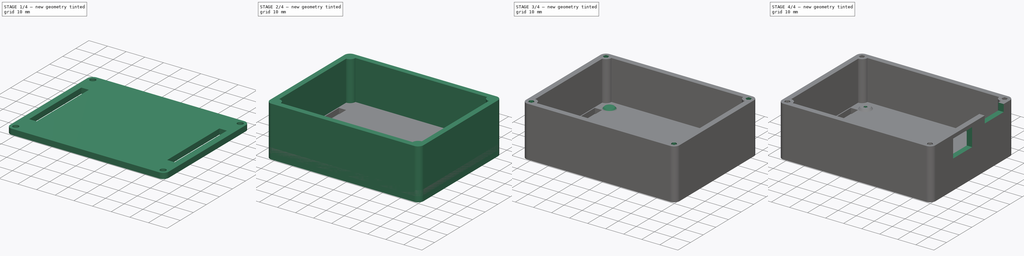
[diagram: build sequence overview — one tinted view per stage of 4, left to right]
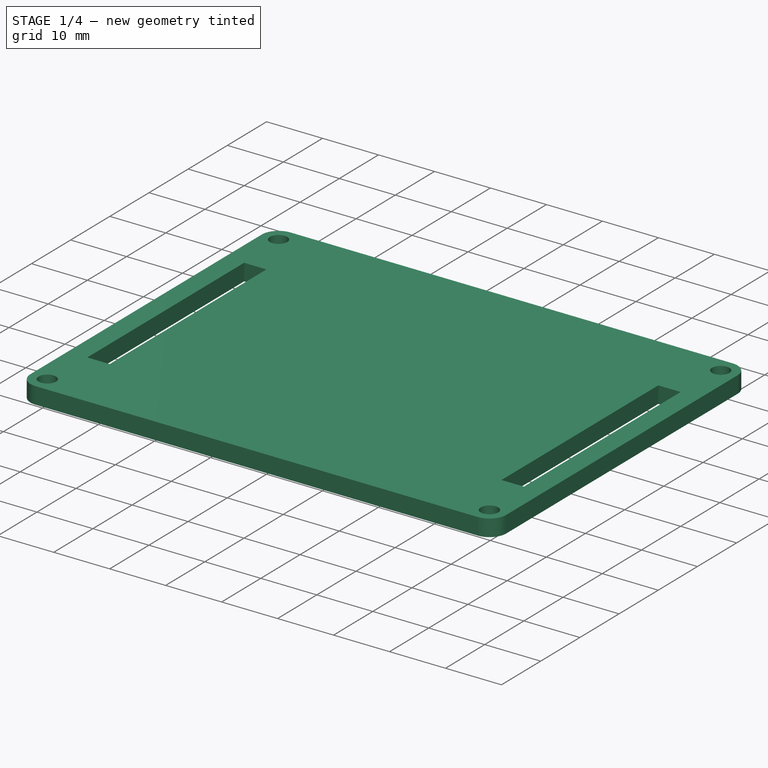
[diagram: stage 1 of 4 — iso view after this stage's code; geometry added in this stage tinted green]
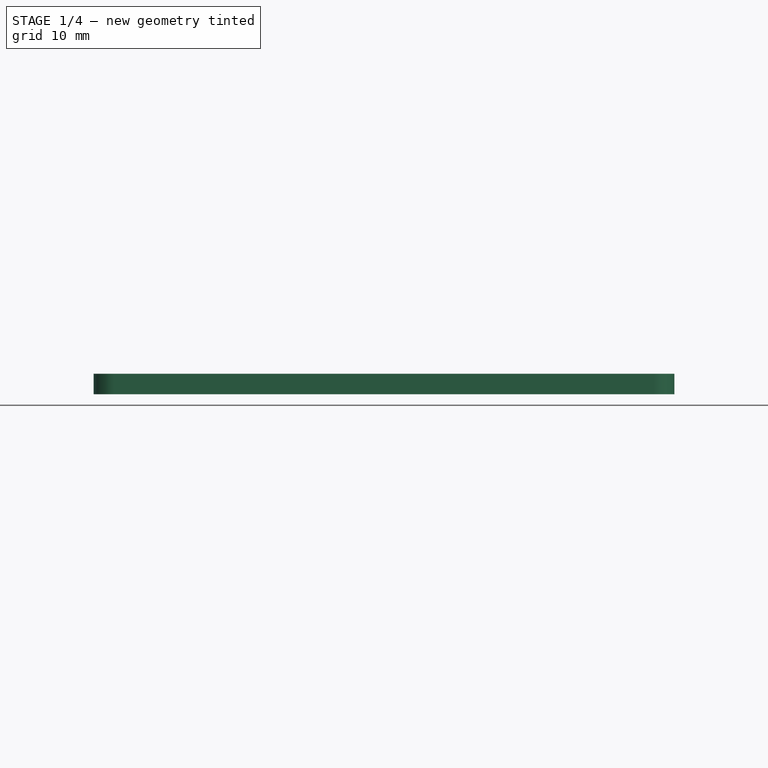
[diagram: stage 1 of 4 — front view after this stage's code; geometry added in this stage tinted green]
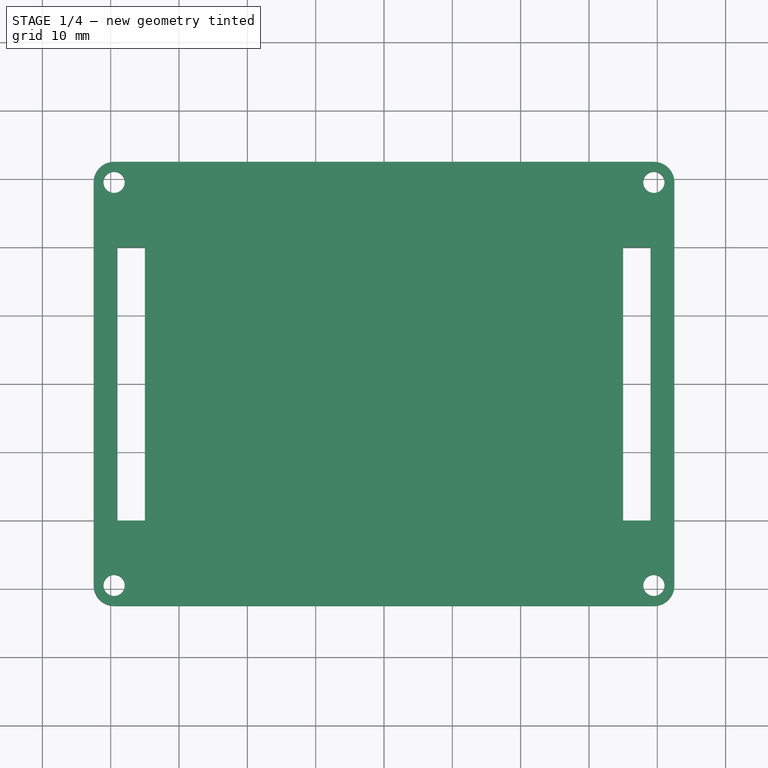
[diagram: stage 1 of 4 — top view after this stage's code; geometry added in this stage tinted green]
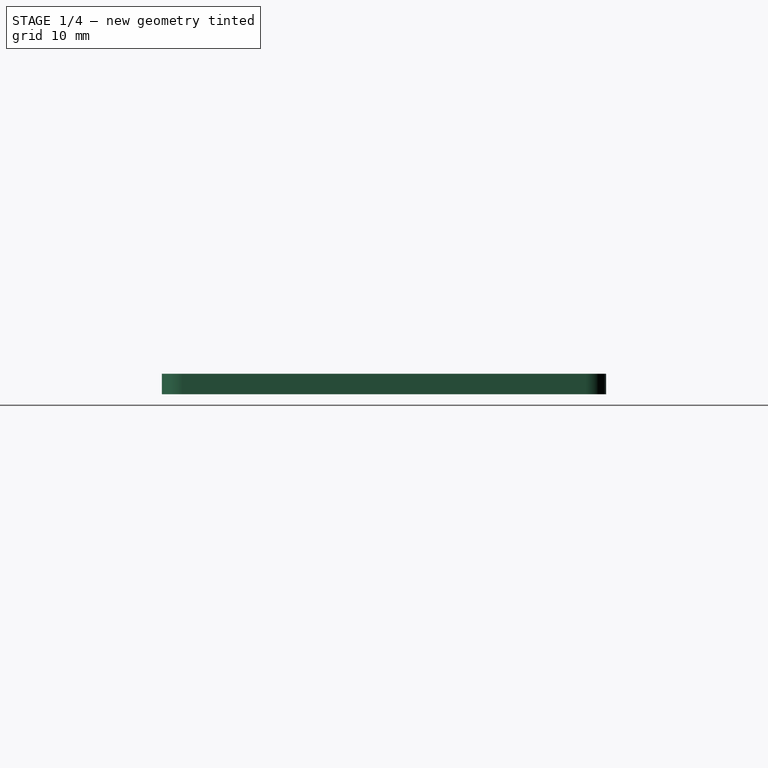
[diagram: stage 1 of 4 — right view after this stage's code; geometry added in this stage tinted green]
FCSTD DOCUMENT  (FreeCAD 0.19R24291 (Git))
Label: boiler_monitor_case
License: All rights reserved
LicenseURL: http://en.wikipedia.org/wiki/All_rights_reserved
objects: Sketcher::SketchObject×10, PartDesign::Pocket×5, PartDesign::Plane×3, PartDesign::Pad×3, PartDesign::CoordinateSystem×2, App::Link×2, PartDesign::LinearPattern×2, PartDesign::Body×2, App::Part×1, PartDesign::AdditiveLoft×1, PartDesign::MultiTransform×1, App::DocumentObjectGroup×1
note: 38 computed .brp shape members not serialized (recipe doc carries the construction recipe); baked Part::Feature solids carry a one-line shape summary decoded from their .brp

FEATURE [PartDesign::CoordinateSystem] LCS_0001  label="Lid_LCS"
  AttacherType = Attacher::AttachEngine3D
  MapMode = 2
  Support = -> [X_Axis002]
FEATURE [Sketcher::SketchObject] Sketch004  label="Lid_S_Panel"
  FullyConstrained = true
  MapMode = 5
  Support = -> [XY_Plane002]
  expr: Constraints[10] = Sketch.Constraints[10]
  expr: Constraints[11] = Sketch.Constraints[11]
  expr: .Constraints.wall = Sketch.Constraints[15]
  sketch-geometry (12):
    g0: LineSegment StartX=-39.5 StartY=32.5 StartZ=0 EndX=39.5 EndY=32.5 EndZ=0
    g1: LineSegment StartX=42.5 StartY=29.5 StartZ=0 EndX=42.5 EndY=-29.5 EndZ=0
    g2: LineSegment StartX=39.5 StartY=-32.5 StartZ=0 EndX=-39.5 EndY=-32.5 EndZ=0
    g3: LineSegment StartX=-42.5 StartY=-29.5 StartZ=0 EndX=-42.5 EndY=29.5 EndZ=0
    g4: ArcOfCircle CenterX=39.5 CenterY=29.5 CenterZ=0 NormalX=0 NormalY=0 NormalZ=1 AngleXU=0 Radius=3 StartAngle=-9e-16 EndAngle=1.5708
    g5: ArcOfCircle CenterX=-39.5 CenterY=29.5 CenterZ=0 NormalX=0 NormalY=0 NormalZ=1 AngleXU=0 Radius=3 StartAngle=1.5708 EndAngle=3.14159
    g6: ArcOfCircle CenterX=-39.5 CenterY=-29.5 CenterZ=0 NormalX=0 NormalY=0 NormalZ=1 AngleXU=0 Radius=3 StartAngle=3.14159 EndAngle=4.71239
    g7: ArcOfCircle CenterX=39.5 CenterY=-29.5 CenterZ=0 NormalX=0 NormalY=0 NormalZ=1 AngleXU=0 Radius=3 StartAngle=4.71239 EndAngle=6.28319
    g8: Circle CenterX=-39.5 CenterY=29.5 CenterZ=0 NormalX=0 NormalY=0 NormalZ=1 AngleXU=0 Radius=1.55
    g9: Circle CenterX=39.5 CenterY=29.5 CenterZ=0 NormalX=0 NormalY=0 NormalZ=1 AngleXU=0 Radius=1.55
    g10: Circle CenterX=39.5 CenterY=-29.5 CenterZ=0 NormalX=0 NormalY=0 NormalZ=1 AngleXU=0 Radius=1.55
    g11: Circle CenterX=-39.5 CenterY=-29.5 CenterZ=0 NormalX=0 NormalY=0 NormalZ=1 AngleXU=0 Radius=1.55
  constraints (25):
    c: Horizontal(g2)
    c: Vertical(g3)
    c: Tangent(g0,g4) = 1.5708
    c: Tangent(g1,g4) = 1.5708
    c: Tangent(g0,g5) = 1.5708
    c: Tangent(g3,g5) = 1.5708
    c: Tangent(g3,g6) = 1.5708
    c: Tangent(g2,g6) = 1.5708
    c: Tangent(g2,g7) = 1.5708
    c: Tangent(g1,g7) = 1.5708
    c: DistanceY(g2,g0) = 65
    c: DistanceX(g3,g1) = 85
    c: Equal(g5,g4)
    c: Symmetric(g5,g6,g-1)
    c: Symmetric(g5,g4,g-2)
    c: Radius(g7) = 3  'wall'
    c: Symmetric(g7,g4,g-1)
    c: Coincident(g8,g5)
    c: Coincident(g9,g4)
    c: Coincident(g10,g7)
    c: Coincident(g11,g6)
    c: Equal(g8,g9)
    c: Equal(g9,g10)
    c: Equal(g10,g11)
    c: Diameter(g11) = 3.1
FEATURE [PartDesign::Pad] Pad002  label="Lid_Panel"
  Direction = (1,1,1)
  Length = 3
  Length2 = 100
  Profile = -> Sketch004
  Type = 0
FEATURE [PartDesign::Body] Case
  Group = -> [LCS_0,Sketch,DatumPlane,DatumPlane001,Pad,Sketch001,Pocket,Sketch002,Pad001,Sketch003,Pocket001,DatumPlane002,Sketch005,Sketch006,AdditiveLoft,MultiTransform,LinearPattern,LinearPattern001,Sketch007,Pocket002,Sketch008,Pocket003]
  Origin = -> Origin001
  Tip = -> Pocket003
FEATURE [Sketcher::SketchObject] Sketch009  label="Lid_S_Vent"
  FullyConstrained = true
  MapMode = 5
  Support = -> [XY_Plane002]
  sketch-geometry (8):
    g0: LineSegment StartX=-39 StartY=20 StartZ=0 EndX=-35 EndY=20 EndZ=0
    g1: LineSegment StartX=-35 StartY=20 StartZ=0 EndX=-35 EndY=-20 EndZ=0
    g2: LineSegment StartX=-35 StartY=-20 StartZ=0 EndX=-39 EndY=-20 EndZ=0
    g3: LineSegment StartX=-39 StartY=-20 StartZ=0 EndX=-39 EndY=20 EndZ=0
    g4: LineSegment StartX=35 StartY=20 StartZ=0 EndX=39 EndY=20 EndZ=0
    g5: LineSegment StartX=39 StartY=20 StartZ=0 EndX=39 EndY=-20 EndZ=0
    g6: LineSegment StartX=39 StartY=-20 StartZ=0 EndX=35 EndY=-20 EndZ=0
    g7: LineSegment StartX=35 StartY=-20 StartZ=0 EndX=35 EndY=20 EndZ=0
  constraints (21):
    c: Coincident(g0,g1)
    c: Coincident(g1,g2)
    c: Coincident(g2,g3)
    c: Coincident(g3,g0)
    c: Horizontal(g0)
    c: Horizontal(g2)
    c: Vertical(g3)
    c: Coincident(g4,g5)
    c: Coincident(g5,g6)
    c: Coincident(g6,g7)
    c: Coincident(g7,g4)
    c: Horizontal(g4)
    c: Horizontal(g6)
    c: Vertical(g5)
    c: Symmetric(g0,g4,g-2)
    c: Symmetric(g1,g6,g-2)
    c: Equal(g0,g4)
    c: Symmetric(g0,g1,g-1)
    c: DistanceY(g3,g3) = 40  'vent_length'
    c: DistanceX(g0,g0) = 4  'vent_width'
    c: DistanceX(g2,g5) = 78
FEATURE [PartDesign::Pocket] Pocket004  label="Lid_Vent"
  BaseFeature = -> Pad002
  Length = 5
  Length2 = 100
  Profile = -> Sketch009
  Reversed = true
  Type = 1
FEATURE [PartDesign::Body] Lid
  Group = -> [LCS_0001,Sketch004,Pad002,Sketch009,Pocket004]
  Origin = -> Origin002
  Tip = -> Pocket004
FEATURE [App::DocumentObjectGroup] Parts
  Group = -> [Case,Lid]
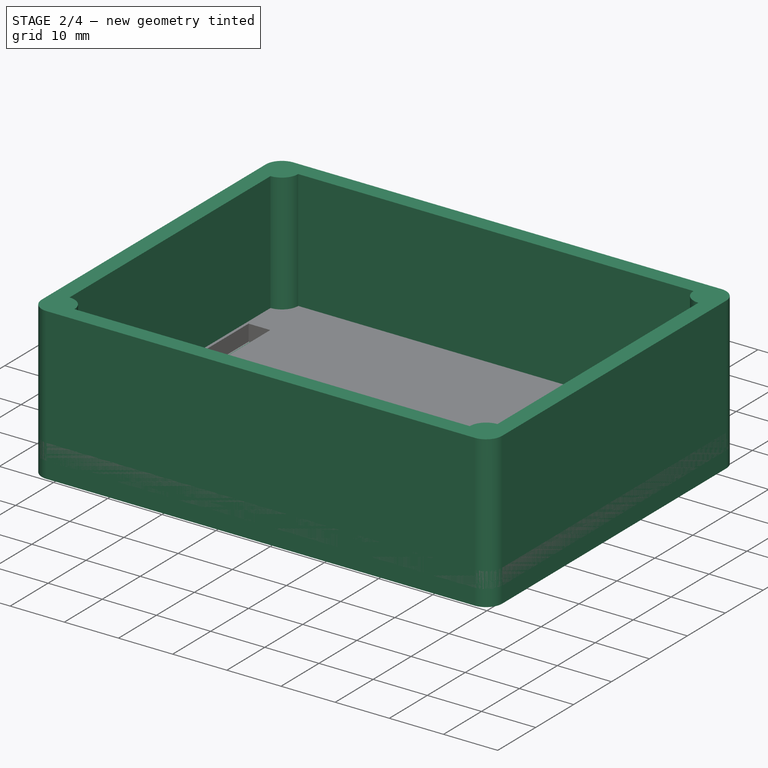
[diagram: stage 2 of 4 — iso view after this stage's code; geometry added in this stage tinted green]
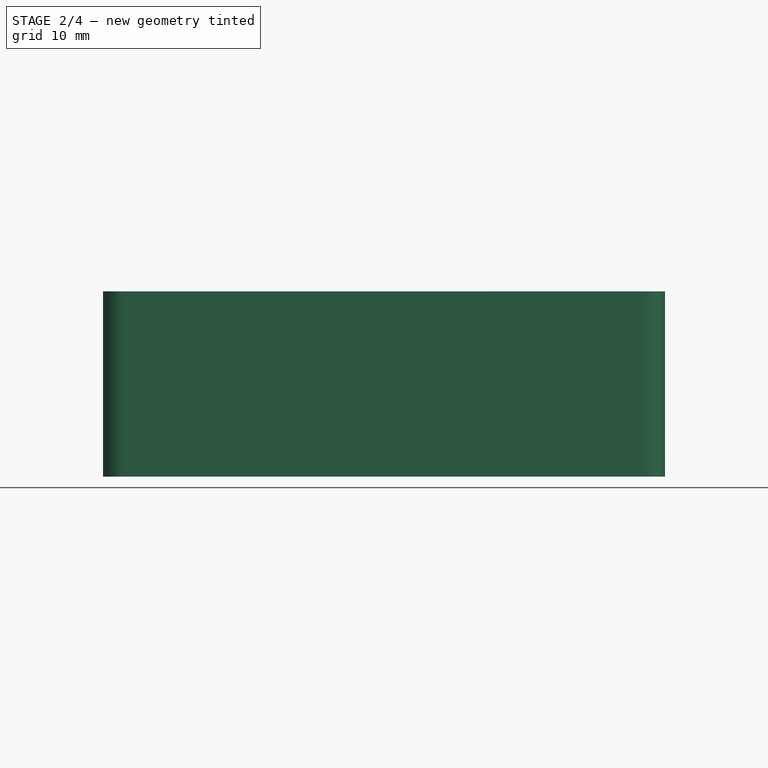
[diagram: stage 2 of 4 — front view after this stage's code; geometry added in this stage tinted green]
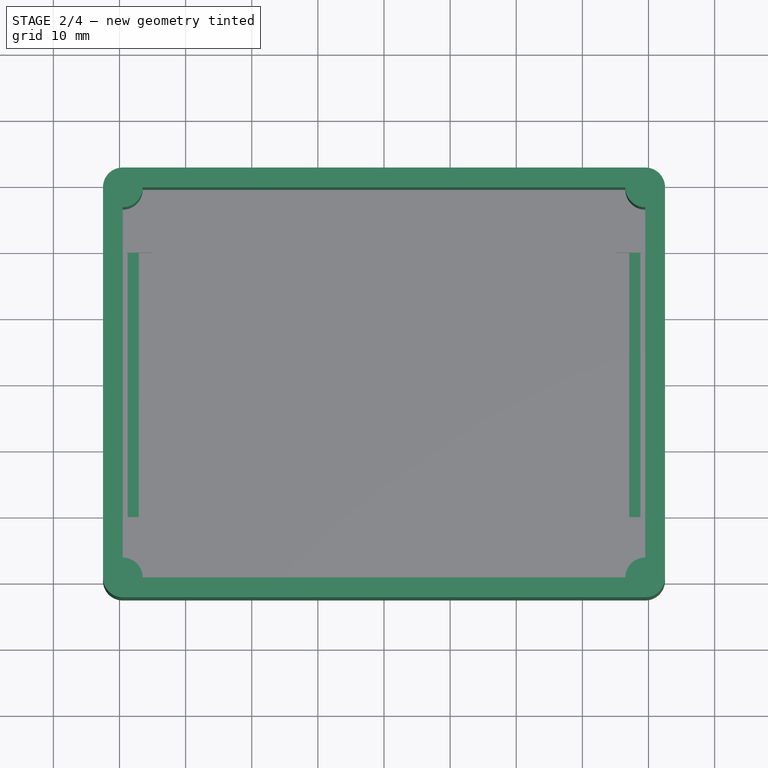
[diagram: stage 2 of 4 — top view after this stage's code; geometry added in this stage tinted green]
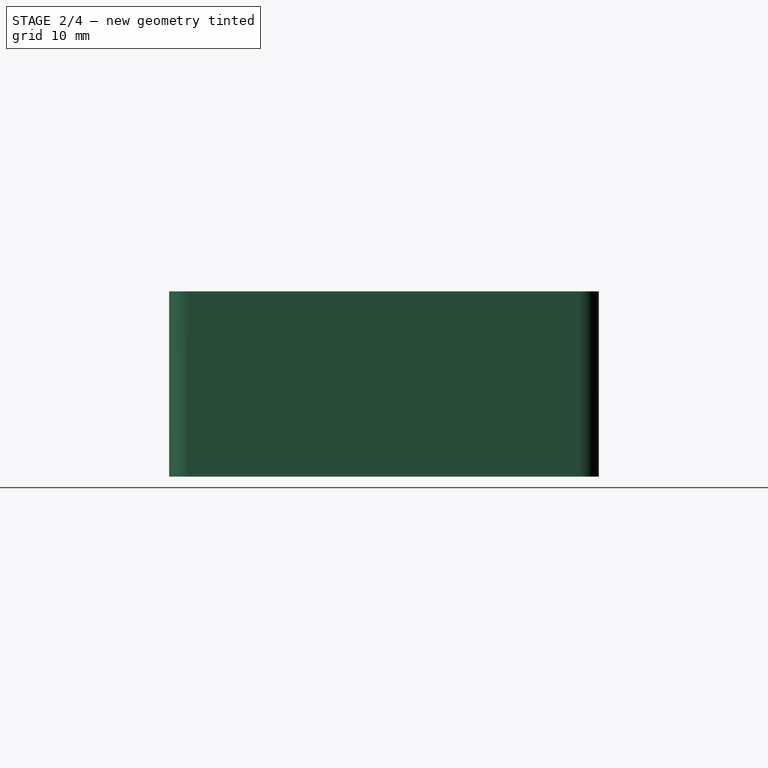
[diagram: stage 2 of 4 — right view after this stage's code; geometry added in this stage tinted green]
FEATURE [PartDesign::Plane] DatumPlane  label="Case_Plane_Bottom"
  AttachmentOffset = pos=(0,0,-3) rot=(0,0,1;0rad)
  Length = 99.8661
  MapMode = 5
  Placement = pos=(0,0,-3) rot=(0,0,1;0rad)
  ResizeMode = 0
  Support = -> [XY_Plane001]
  Width = 79.8661
FEATURE [Sketcher::SketchObject] Sketch  label="Case_S_Outer"
  FullyConstrained = true
  MapMode = 5
  Placement = pos=(0,0,-3) rot=(0,0,1;0rad)
  Support = -> [DatumPlane]
  sketch-geometry (8):
    g0: LineSegment StartX=-39.5 StartY=32.5 StartZ=0 EndX=39.5 EndY=32.5 EndZ=0
    g1: LineSegment StartX=42.5 StartY=29.5 StartZ=0 EndX=42.5 EndY=-29.5 EndZ=0
    g2: LineSegment StartX=39.5 StartY=-32.5 StartZ=0 EndX=-39.5 EndY=-32.5 EndZ=0
    g3: LineSegment StartX=-42.5 StartY=-29.5 StartZ=0 EndX=-42.5 EndY=29.5 EndZ=0
    g4: ArcOfCircle CenterX=39.5 CenterY=29.5 CenterZ=0 NormalX=0 NormalY=0 NormalZ=1 AngleXU=0 Radius=3 StartAngle=-1.8527e-12 EndAngle=1.5708
    g5: ArcOfCircle CenterX=-39.5 CenterY=29.5 CenterZ=0 NormalX=0 NormalY=0 NormalZ=1 AngleXU=0 Radius=3 StartAngle=1.5708 EndAngle=3.14159
    g6: ArcOfCircle CenterX=-39.5 CenterY=-29.5 CenterZ=0 NormalX=0 NormalY=0 NormalZ=1 AngleXU=0 Radius=3 StartAngle=3.14159 EndAngle=4.71239
    g7: ArcOfCircle CenterX=39.5 CenterY=-29.5 CenterZ=0 NormalX=0 NormalY=0 NormalZ=1 AngleXU=0 Radius=3 StartAngle=4.71239 EndAngle=6.28319
  constraints (17):
    c: Horizontal(g2)
    c: Vertical(g3)
    c: Tangent(g0,g4) = 1.5708
    c: Tangent(g1,g4) = 1.5708
    c: Tangent(g0,g5) = 1.5708
    c: Tangent(g3,g5) = 1.5708
    c: Tangent(g3,g6) = 1.5708
    c: Tangent(g2,g6) = 1.5708
    c: Tangent(g2,g7) = 1.5708
    c: Tangent(g1,g7) = 1.5708
    c: DistanceY(g2,g0) = 65
    c: DistanceX(g3,g1) = 85
    c: Equal(g5,g4)
    c: Symmetric(g5,g6,g-1)
    c: Symmetric(g5,g4,g-2)
    c: Radius(g7) = 3  'wall'
    c: Symmetric(g7,g4,g-1)
FEATURE [PartDesign::Plane] DatumPlane001  label="Case_Plane_Top"
  AttachmentOffset = pos=(0,0,25) rot=(0,0,1;0rad)
  Length = 99.8661
  MapMode = 5
  Placement = pos=(0,0,25) rot=(0,0,1;0rad)
  ResizeMode = 0
  Support = -> [XY_Plane001]
  Width = 79.8661
FEATURE [PartDesign::CoordinateSystem] LCS_0  label="Case_LCS_Top"
  AttacherType = Attacher::AttachEngine3D
  MapMode = 2
  Placement = pos=(0,0,25) rot=(0,0,1;0rad)
  Support = -> [DatumPlane001]
FEATURE [PartDesign::Pad] Pad  label="Case_Outer"
  Direction = (1,1,1)
  Length = 10
  Length2 = 100
  Placement = pos=(0,0,-3) rot=(0,0,1;0rad)
  Profile = -> Sketch
  Type = 3
  UpToFace = -> DatumPlane001 [Plane]
FEATURE [Sketcher::SketchObject] Sketch001  label="Case_S_Inner"
  FullyConstrained = true
  MapMode = 5
  Placement = pos=(0,0,25) rot=(0,0,1;0rad)
  Support = -> [DatumPlane001]
  expr: Constraints[23] = Sketch.Constraints.wall
  expr: Constraints[19] = Sketch.Constraints[11]
  expr: Constraints[18] = Sketch.Constraints[10]
  sketch-geometry (12):
    g0: LineSegment StartX=39.5 StartY=-29.5 StartZ=0 EndX=-39.5 EndY=-29.5 EndZ=0
    g1: LineSegment StartX=-39.5 StartY=-29.5 StartZ=0 EndX=-39.5 EndY=29.5 EndZ=0
    g2: LineSegment StartX=-39.5 StartY=29.5 StartZ=0 EndX=39.5 EndY=29.5 EndZ=0
    g3: LineSegment StartX=39.5 StartY=29.5 StartZ=0 EndX=39.5 EndY=-29.5 EndZ=0
    g4: LineSegment StartX=-39.5 StartY=32.5 StartZ=0 EndX=39.5 EndY=32.5 EndZ=0
    g5: LineSegment StartX=42.5 StartY=29.5 StartZ=0 EndX=42.5 EndY=-29.5 EndZ=0
    g6: LineSegment StartX=39.5 StartY=-32.5 StartZ=0 EndX=-39.5 EndY=-32.5 EndZ=0
    g7: LineSegment StartX=-42.5 StartY=-29.5 StartZ=0 EndX=-42.5 EndY=29.5 EndZ=0
    g8: ArcOfCircle CenterX=39.5 CenterY=29.5 CenterZ=0 NormalX=0 NormalY=0 NormalZ=1 AngleXU=0 Radius=3 StartAngle=0 EndAngle=1.5708
    g9: ArcOfCircle CenterX=-39.5 CenterY=29.5 CenterZ=0 NormalX=0 NormalY=0 NormalZ=1 AngleXU=0 Radius=3 StartAngle=1.5708 EndAngle=3.14159
    g10: ArcOfCircle CenterX=-39.5 CenterY=-29.5 CenterZ=0 NormalX=0 NormalY=0 NormalZ=1 AngleXU=0 Radius=3 StartAngle=3.14159 EndAngle=4.71239
    g11: ArcOfCircle CenterX=39.5 CenterY=-29.5 CenterZ=0 NormalX=0 NormalY=0 NormalZ=1 AngleXU=0 Radius=3 StartAngle=4.71239 EndAngle=6.28319
  constraints (26):
    c: Coincident(g0,g1)
    c: Coincident(g1,g2)
    c: Coincident(g2,g3)
    c: Coincident(g3,g0)
    c: Horizontal(g2)
    c: Vertical(g3)
    c: Symmetric(g0,g0,g-2)
    c: Symmetric(g0,g1,g-1)
    c: Horizontal(g6)
    c: Vertical(g7)
    c: Tangent(g4,g8) = 1.5708
    c: Tangent(g5,g8) = 1.5708
    c: Tangent(g4,g9) = 1.5708
    c: Tangent(g7,g9) = 1.5708
    c: Tangent(g7,g10) = 1.5708
    c: Tangent(g6,g10) = 1.5708
    c: Tangent(g6,g11) = 1.5708
    c: Tangent(g5,g11) = 1.5708
    c: DistanceY(g6,g4) = 65
    c: DistanceX(g7,g5) = 85
    c: Equal(g9,g8)
    c: Symmetric(g9,g10,g-1)
    c: Symmetric(g9,g8,g-2)
    c: Radius(g11) = 3
    c: Symmetric(g11,g8,g-1)
    c: Coincident(g1,g9)
FEATURE [PartDesign::Pocket] Pocket  label="Case_Inner"
  BaseFeature = -> Pad
  Length = 0
  Length2 = 100
  Placement = pos=(0,0,-3) rot=(0,0,1;0rad)
  Profile = -> Sketch001
  Type = 3
  UpToFace = -> XY_Plane001
FEATURE [Sketcher::SketchObject] Sketch002  label="Case_S_MountSupports"
  FullyConstrained = true
  MapMode = 5
  Placement = pos=(0,0,25) rot=(0,0,1;0rad)
  Support = -> [DatumPlane001]
  expr: Constraints[23] = Sketch001.Constraints[23]
  expr: Constraints[19] = Sketch001.Constraints[19]
  expr: Constraints[18] = Sketch001.Constraints[18]
  sketch-geometry (16):
    g0: LineSegment StartX=39.5 StartY=-29.5 StartZ=0 EndX=-39.5 EndY=-29.5 EndZ=0
    g1: LineSegment StartX=-39.5 StartY=-29.5 StartZ=0 EndX=-39.5 EndY=29.5 EndZ=0
    g2: LineSegment StartX=-39.5 StartY=29.5 StartZ=0 EndX=39.5 EndY=29.5 EndZ=0
    g3: LineSegment StartX=39.5 StartY=29.5 StartZ=0 EndX=39.5 EndY=-29.5 EndZ=0
    g4: LineSegment StartX=-39.5 StartY=32.5 StartZ=0 EndX=39.5 EndY=32.5 EndZ=0
    g5: LineSegment StartX=42.5 StartY=29.5 StartZ=0 EndX=42.5 EndY=-29.5 EndZ=0
    g6: LineSegment StartX=39.5 StartY=-32.5 StartZ=0 EndX=-39.5 EndY=-32.5 EndZ=0
    g7: LineSegment StartX=-42.5 StartY=-29.5 StartZ=0 EndX=-42.5 EndY=29.5 EndZ=0
    g8: ArcOfCircle CenterX=39.5 CenterY=29.5 CenterZ=0 NormalX=0 NormalY=0 NormalZ=1 AngleXU=0 Radius=3 StartAngle=0 EndAngle=1.5708
    g9: ArcOfCircle CenterX=-39.5 CenterY=29.5 CenterZ=0 NormalX=0 NormalY=0 NormalZ=1 AngleXU=0 Radius=3 StartAngle=1.5708 EndAngle=3.14159
    g10: ArcOfCircle CenterX=-39.5 CenterY=-29.5 CenterZ=0 NormalX=0 NormalY=0 NormalZ=1 AngleXU=0 Radius=3 StartAngle=3.14159 EndAngle=4.71239
    g11: ArcOfCircle CenterX=39.5 CenterY=-29.5 CenterZ=0 NormalX=0 NormalY=0 NormalZ=1 AngleXU=0 Radius=3 StartAngle=4.71239 EndAngle=6.28319
    g12: Circle CenterX=-39.5 CenterY=29.5 CenterZ=0 NormalX=0 NormalY=0 NormalZ=1 AngleXU=0 Radius=3
    g13: Circle CenterX=39.5 CenterY=29.5 CenterZ=0 NormalX=0 NormalY=0 NormalZ=1 AngleXU=0 Radius=3
    g14: Circle CenterX=39.5 CenterY=-29.5 CenterZ=0 NormalX=0 NormalY=0 NormalZ=1 AngleXU=0 Radius=3
    g15: Circle CenterX=-39.5 CenterY=-29.5 CenterZ=0 NormalX=0 NormalY=0 NormalZ=1 AngleXU=0 Radius=3
  constraints (34):
    c: Coincident(g0,g1)
    c: Coincident(g1,g2)
    c: Coincident(g2,g3)
    c: Coincident(g3,g0)
    c: Horizontal(g2)
    c: Vertical(g3)
    c: Symmetric(g0,g0,g-2)
    c: Symmetric(g0,g1,g-1)
    c: Horizontal(g6)
    c: Vertical(g7)
    c: Tangent(g4,g8) = 1.5708
    c: Tangent(g5,g8) = 1.5708
    c: Tangent(g4,g9) = 1.5708
    c: Tangent(g7,g9) = 1.5708
    c: Tangent(g7,g10) = 1.5708
    c: Tangent(g6,g10) = 1.5708
    c: Tangent(g6,g11) = 1.5708
    c: Tangent(g5,g11) = 1.5708
    c: DistanceY(g6,g4) = 65
    c: DistanceX(g7,g5) = 85
    c: Equal(g9,g8)
    c: Symmetric(g9,g10,g-1)
    c: Symmetric(g9,g8,g-2)
    c: Radius(g11) = 3
    c: Symmetric(g11,g8,g-1)
    c: Coincident(g1,g9)
    c: Coincident(g12,g1)
    c: PointOnObject(g4,g12)
    c: Coincident(g13,g2)
    c: PointOnObject(g4,g13)
    c: Coincident(g14,g0)
    c: PointOnObject(g6,g14)
    c: Coincident(g15,g0)
    c: PointOnObject(g6,g15)
FEATURE [PartDesign::Pad] Pad001  label="Case_MountSupports"
  BaseFeature = -> Pocket
  Direction = (1,1,1)
  Length = 10
  Length2 = 100
  Placement = pos=(0,0,-3) rot=(0,0,1;0rad)
  Profile = -> Sketch002
  Type = 3
  UpToFace = -> XY_Plane001
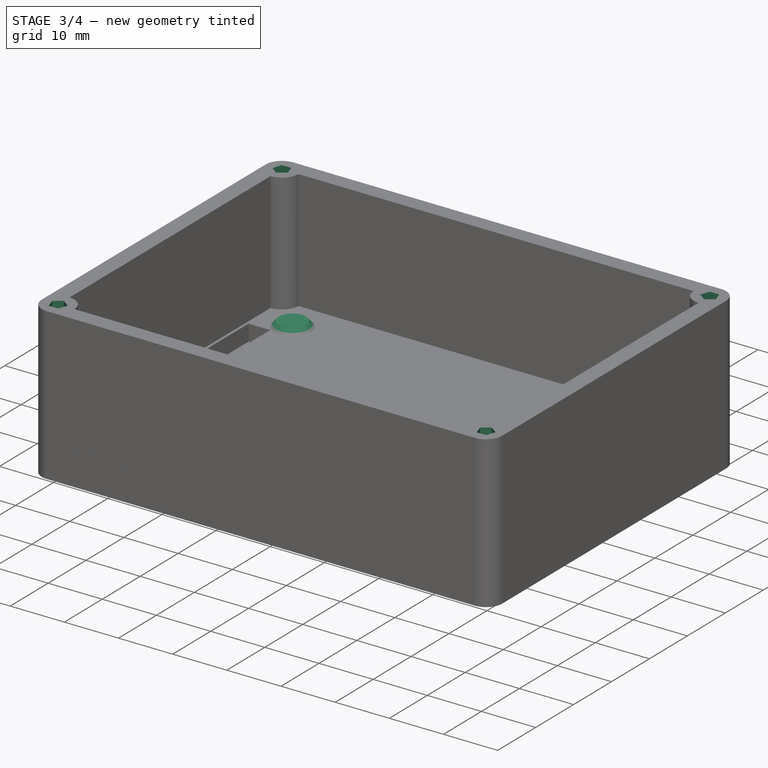
[diagram: stage 3 of 4 — iso view after this stage's code; geometry added in this stage tinted green]
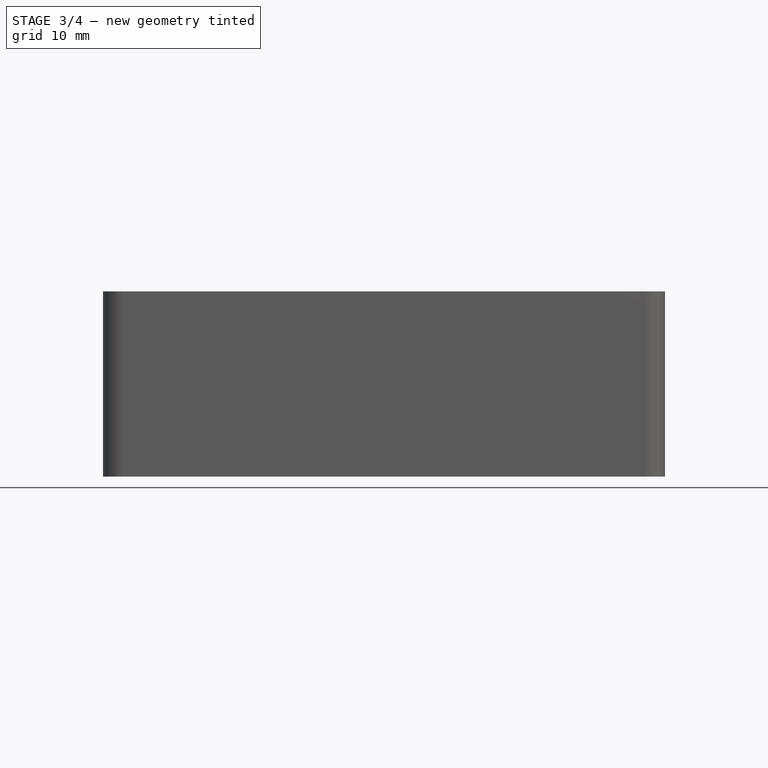
[diagram: stage 3 of 4 — front view after this stage's code; geometry added in this stage tinted green]
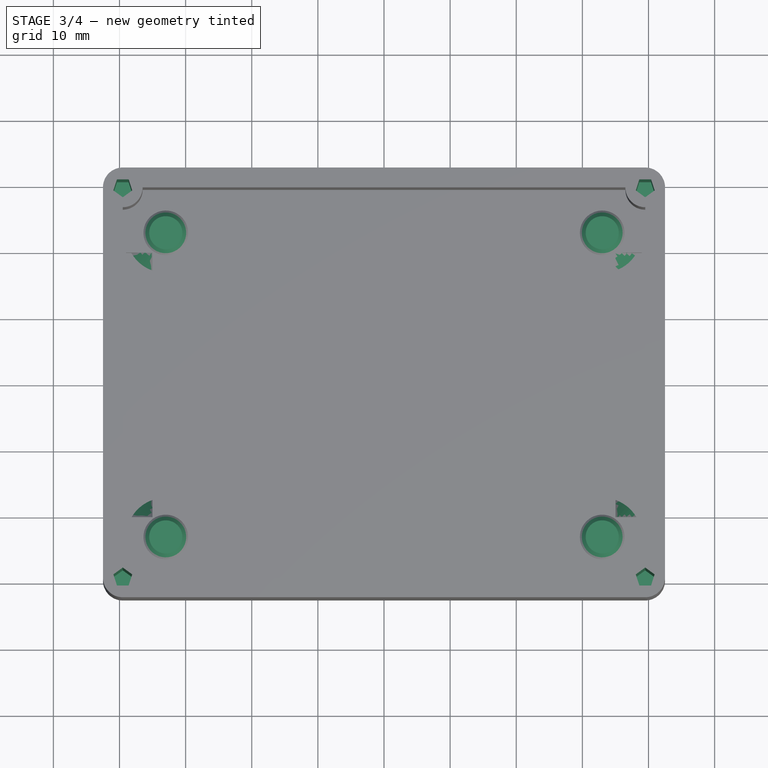
[diagram: stage 3 of 4 — top view after this stage's code; geometry added in this stage tinted green]
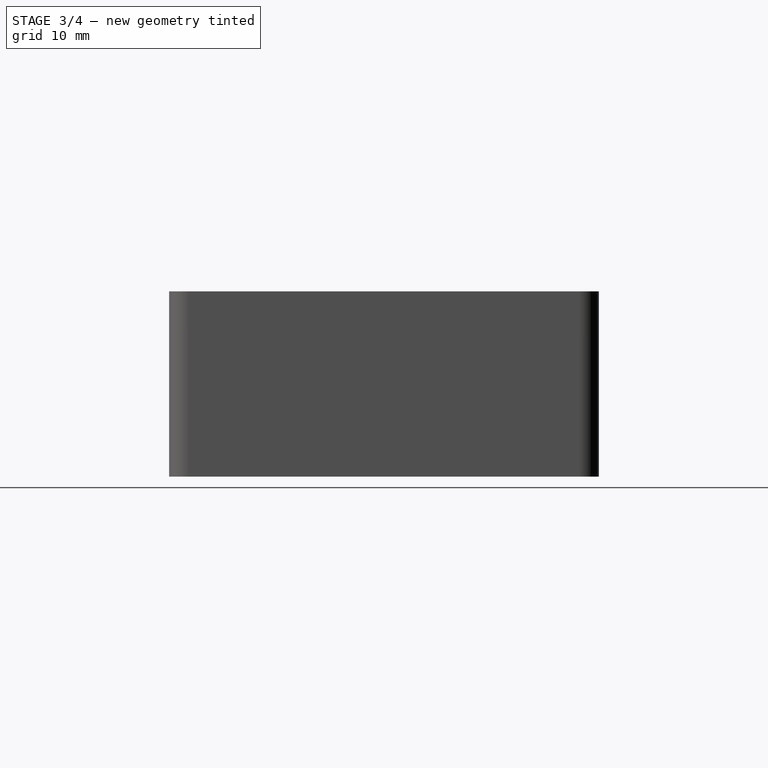
[diagram: stage 3 of 4 — right view after this stage's code; geometry added in this stage tinted green]
FEATURE [Sketcher::SketchObject] Sketch003  label="Case_S_Mount"
  FullyConstrained = true
  MapMode = 5
  Placement = pos=(0,0,25) rot=(0,0,1;0rad)
  Support = -> [DatumPlane001]
  expr: Constraints[23] = Sketch001.Constraints[23]
  expr: Constraints[19] = Sketch001.Constraints[19]
  expr: Constraints[18] = Sketch001.Constraints[18]
  sketch-geometry (36):
    g0: LineSegment StartX=39.5 StartY=-29.5 StartZ=0 EndX=-39.5 EndY=-29.5 EndZ=0
    g1: LineSegment StartX=-39.5 StartY=-29.5 StartZ=0 EndX=-39.5 EndY=29.5 EndZ=0
    g2: LineSegment StartX=-39.5 StartY=29.5 StartZ=0 EndX=39.5 EndY=29.5 EndZ=0
    g3: LineSegment StartX=39.5 StartY=29.5 StartZ=0 EndX=39.5 EndY=-29.5 EndZ=0
    g4: LineSegment StartX=-39.5 StartY=32.5 StartZ=0 EndX=39.5 EndY=32.5 EndZ=0
    g5: LineSegment StartX=42.5 StartY=29.5 StartZ=0 EndX=42.5 EndY=-29.5 EndZ=0
    g6: LineSegment StartX=39.5 StartY=-32.5 StartZ=0 EndX=-39.5 EndY=-32.5 EndZ=0
    g7: LineSegment StartX=-42.5 StartY=-29.5 StartZ=0 EndX=-42.5 EndY=29.5 EndZ=0
    g8: ArcOfCircle CenterX=39.5 CenterY=29.5 CenterZ=0 NormalX=0 NormalY=0 NormalZ=1 AngleXU=0 Radius=3 StartAngle=-9e-16 EndAngle=1.5708
    g9: ArcOfCircle CenterX=-39.5 CenterY=29.5 CenterZ=0 NormalX=0 NormalY=0 NormalZ=1 AngleXU=0 Radius=3 StartAngle=1.5708 EndAngle=3.14159
    g10: ArcOfCircle CenterX=-39.5 CenterY=-29.5 CenterZ=0 NormalX=0 NormalY=0 NormalZ=1 AngleXU=0 Radius=3 StartAngle=3.14159 EndAngle=4.71239
    g11: ArcOfCircle CenterX=39.5 CenterY=-29.5 CenterZ=0 NormalX=0 NormalY=0 NormalZ=1 AngleXU=0 Radius=3 StartAngle=4.71239 EndAngle=6.28319
    g12: LineSegment StartX=-38.0734 StartY=29.0365 StartZ=0 EndX=-38.6183 EndY=30.7135 EndZ=0
    g13: LineSegment StartX=-38.6183 StartY=30.7135 StartZ=0 EndX=-40.3817 EndY=30.7135 EndZ=0
    g14: LineSegment StartX=-40.3817 StartY=30.7135 StartZ=0 EndX=-40.9266 EndY=29.0365 EndZ=0
    g15: LineSegment StartX=-40.9266 StartY=29.0365 StartZ=0 EndX=-39.5 EndY=28 EndZ=0
    g16: LineSegment StartX=-39.5 StartY=28 StartZ=0 EndX=-38.0734 EndY=29.0365 EndZ=0
    g17: Circle CenterX=-39.5 CenterY=29.5 CenterZ=0 NormalX=0 NormalY=0 NormalZ=1 AngleXU=0 Radius=1.5
    g18: LineSegment StartX=38.0734 StartY=29.0365 StartZ=0 EndX=39.5 EndY=28 EndZ=0
    g19: LineSegment StartX=39.5 StartY=28 StartZ=0 EndX=40.9266 EndY=29.0365 EndZ=0
    g20: LineSegment StartX=40.9266 StartY=29.0365 StartZ=0 EndX=40.3817 EndY=30.7135 EndZ=0
    g21: LineSegment StartX=40.3817 StartY=30.7135 StartZ=0 EndX=38.6183 EndY=30.7135 EndZ=0
    g22: LineSegment StartX=38.6183 StartY=30.7135 StartZ=0 EndX=38.0734 EndY=29.0365 EndZ=0
    g23: Circle CenterX=39.5 CenterY=29.5 CenterZ=0 NormalX=0 NormalY=0 NormalZ=1 AngleXU=0 Radius=1.5
    g24: LineSegment StartX=40.9266 StartY=-29.0365 StartZ=0 EndX=39.5 EndY=-28 EndZ=0
    g25: LineSegment StartX=39.5 StartY=-28 StartZ=0 EndX=38.0734 EndY=-29.0365 EndZ=0
    g26: LineSegment StartX=38.0734 StartY=-29.0365 StartZ=0 EndX=38.6183 EndY=-30.7135 EndZ=0
    g27: LineSegment StartX=38.6183 StartY=-30.7135 StartZ=0 EndX=40.3817 EndY=-30.7135 EndZ=0
    g28: LineSegment StartX=40.3817 StartY=-30.7135 StartZ=0 EndX=40.9266 EndY=-29.0365 EndZ=0
    g29: Circle CenterX=39.5 CenterY=-29.5 CenterZ=0 NormalX=0 NormalY=0 NormalZ=1 AngleXU=0 Radius=1.5
    g30: LineSegment StartX=-39.5 StartY=-28 StartZ=0 EndX=-40.9266 EndY=-29.0365 EndZ=0
    g31: LineSegment StartX=-40.9266 StartY=-29.0365 StartZ=0 EndX=-40.3817 EndY=-30.7135 EndZ=0
    g32: LineSegment StartX=-40.3817 StartY=-30.7135 StartZ=0 EndX=-38.6183 EndY=-30.7135 EndZ=0
    g33: LineSegment StartX=-38.6183 StartY=-30.7135 StartZ=0 EndX=-38.0734 EndY=-29.0365 EndZ=0
    g34: LineSegment StartX=-38.0734 StartY=-29.0365 StartZ=0 EndX=-39.5 EndY=-28 EndZ=0
    g35: Circle CenterX=-39.5 CenterY=-29.5 CenterZ=0 NormalX=0 NormalY=0 NormalZ=1 AngleXU=0 Radius=1.5
  constraints (82):
    c: Coincident(g0,g1)
    c: Coincident(g1,g2)
    c: Coincident(g2,g3)
    c: Coincident(g3,g0)
    c: Horizontal(g2)
    c: Vertical(g3)
    c: Symmetric(g0,g0,g-2)
    c: Symmetric(g0,g1,g-1)
    c: Horizontal(g6)
    c: Vertical(g7)
    c: Tangent(g4,g8) = 1.5708
    c: Tangent(g5,g8) = 1.5708
    c: Tangent(g4,g9) = 1.5708
    c: Tangent(g7,g9) = 1.5708
    c: Tangent(g7,g10) = 1.5708
    c: Tangent(g6,g10) = 1.5708
    c: Tangent(g6,g11) = 1.5708
    c: Tangent(g5,g11) = 1.5708
    c: DistanceY(g6,g4) = 65
    c: DistanceX(g7,g5) = 85
    c: Equal(g9,g8)
    c: Symmetric(g9,g10,g-1)
    c: Symmetric(g9,g8,g-2)
    c: Radius(g11) = 3
    c: Symmetric(g11,g8,g-1)
    c: Coincident(g1,g9)
    c: Coincident(g12,g13)
    c: Coincident(g13,g14)
    c: Coincident(g14,g15)
    c: Coincident(g15,g16)
    c: Coincident(g16,g12)
    c: Equal(g12, g13-g16) x4
    c: PointOnObject(g12,g17)
    c: PointOnObject(g13,g17)
    c: PointOnObject(g14,g17)
    c: PointOnObject(g15,g17)
    c: PointOnObject(g16,g17)
    c: Coincident(g17,g1)
    c: Coincident(g18,g19)
    c: Coincident(g19,g20)
    c: Coincident(g20,g21)
    c: Coincident(g21,g22)
    c: Coincident(g22,g18)
    c: Equal(g18, g19-g22) x4
    c: PointOnObject(g18,g23)
    c: PointOnObject(g19,g23)
    c: PointOnObject(g20,g23)
    c: PointOnObject(g21,g23)
    c: PointOnObject(g22,g23)
    c: Coincident(g23,g2)
    c: Coincident(g24,g25)
    c: Coincident(g25,g26)
    c: Coincident(g26,g27)
    c: Coincident(g27,g28)
    c: Coincident(g28,g24)
    c: Equal(g24, g25-g28) x4
    c: PointOnObject(g24,g29)
    c: PointOnObject(g25,g29)
    c: PointOnObject(g26,g29)
    c: PointOnObject(g27,g29)
    c: PointOnObject(g28,g29)
    c: Coincident(g29,g0)
    c: Coincident(g30,g31)
    c: Coincident(g31,g32)
    c: Coincident(g32,g33)
    c: Coincident(g33,g34)
    c: Coincident(g34,g30)
    c: Equal(g30, g31-g34) x4
    c: PointOnObject(g30,g35)
    c: PointOnObject(g31,g35)
    c: PointOnObject(g32,g35)
    c: PointOnObject(g33,g35)
    c: PointOnObject(g34,g35)
    c: Coincident(g35,g0)
    c: Equal(g17,g23)
    c: Equal(g23,g29)
    c: Equal(g29,g35)
    c: Diameter(g35) = 3
    c: PointOnObject(g15,g1)
    c: PointOnObject(g30,g1)
    c: PointOnObject(g24,g3)
    c: PointOnObject(g18,g3)
FEATURE [PartDesign::Pocket] Pocket001  label="Case_Mount"
  BaseFeature = -> Pad001
  Length = 0
  Length2 = 100
  Placement = pos=(0,0,-3) rot=(0,0,1;0rad)
  Profile = -> Sketch003
  Type = 3
  UpToFace = -> XY_Plane001
FEATURE [App::Link] Case001  label="Case_Ass"
  LinkedObject = -> Case
FEATURE [App::Link] Lid001  label="Lid_Ass"
  AssemblyType = Asm4EE
  AttachedBy = #LCS_0001
  AttachedTo = Case001#LCS_0
  LinkPlacement = pos=(0,0,25) rot=(0,0,1;0rad)
  LinkedObject = -> Lid
  Placement = pos=(0,0,25) rot=(0,0,1;0rad)
  expr: Placement = Case001.Placement * LCS_0.Placement * AttachmentOffset * LCS_0001.Placement ^ -1
FEATURE [App::Part] Model
  Configuration = 0
  Group = -> [Case001,Lid001]
  Origin = -> Origin
  Type = Assembly4 Model
FEATURE [PartDesign::Plane] DatumPlane002  label="Case_Plane_PcbStandoffs"
  AttachmentOffset = pos=(0,0,4) rot=(0,0,1;0rad)
  Length = 99.8661
  MapMode = 5
  Placement = pos=(0,0,4) rot=(0,0,1;0rad)
  ResizeMode = 0
  Support = -> [XY_Plane001]
  Width = 79.8661
FEATURE [Sketcher::SketchObject] Sketch005  label="Case_S_PcbStandoffUpper"
  AttachmentOffset = pos=(-33,-23,0) rot=(0,0,1;0rad)
  FullyConstrained = true
  MapMode = 5
  Placement = pos=(-33,-23,4) rot=(0,0,1;0rad)
  Support = -> [DatumPlane002]
  sketch-geometry (1):
    g0: Circle CenterX=0 CenterY=0 CenterZ=0 NormalX=0 NormalY=0 NormalZ=1 AngleXU=0 Radius=2.5
  constraints (2):
    c: Coincident(g0,g-1)
    c: Diameter(g0) = 5
FEATURE [Sketcher::SketchObject] Sketch006  label="Case_S_PcbStandoffLower"
  AttachmentOffset = pos=(-33,-23,0) rot=(0,0,1;0rad)
  FullyConstrained = true
  MapMode = 5
  Placement = pos=(-33,-23,0) rot=(0,0,1;0rad)
  Support = -> [XY_Plane001]
  sketch-geometry (1):
    g0: Circle CenterX=0 CenterY=0 CenterZ=0 NormalX=0 NormalY=0 NormalZ=1 AngleXU=0 Radius=6
  constraints (2):
    c: Coincident(g0,g-1)
    c: Diameter(g0) = 12
FEATURE [PartDesign::AdditiveLoft] AdditiveLoft  label="Case_PcbStandoff"
  BaseFeature = -> Pocket001
  Closed = false
  Placement = pos=(0,0,-3) rot=(0,0,1;0rad)
  Profile = -> Sketch005
  Ruled = false
  Sections = -> [Sketch006]
FEATURE [PartDesign::LinearPattern] LinearPattern  label="Case_Trans_PcbStandoffsX"
  Direction = -> Sketch005 [H_Axis]
  Length = 66
  Occurrences = 2
  Placement = pos=(0,0,-3) rot=(0,0,1;0rad)
FEATURE [PartDesign::LinearPattern] LinearPattern001  label="Case_Trans_PcbStandoffsY"
  Direction = -> Sketch005 [V_Axis]
  Length = 46
  Occurrences = 2
  Placement = pos=(0,0,-3) rot=(0,0,1;0rad)
FEATURE [PartDesign::MultiTransform] MultiTransform  label="Case_PcbStandoffs"
  BaseFeature = -> AdditiveLoft
  Originals = -> [AdditiveLoft]
  Placement = pos=(0,0,-3) rot=(0,0,1;0rad)
  Transformations = -> [LinearPattern,LinearPattern001]
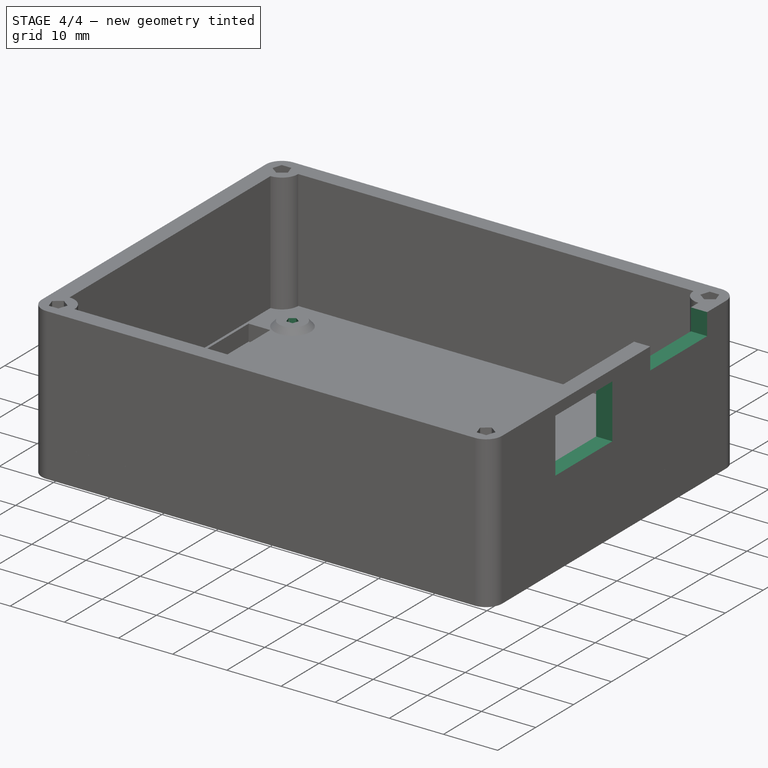
[diagram: stage 4 of 4 — iso view after this stage's code; geometry added in this stage tinted green]
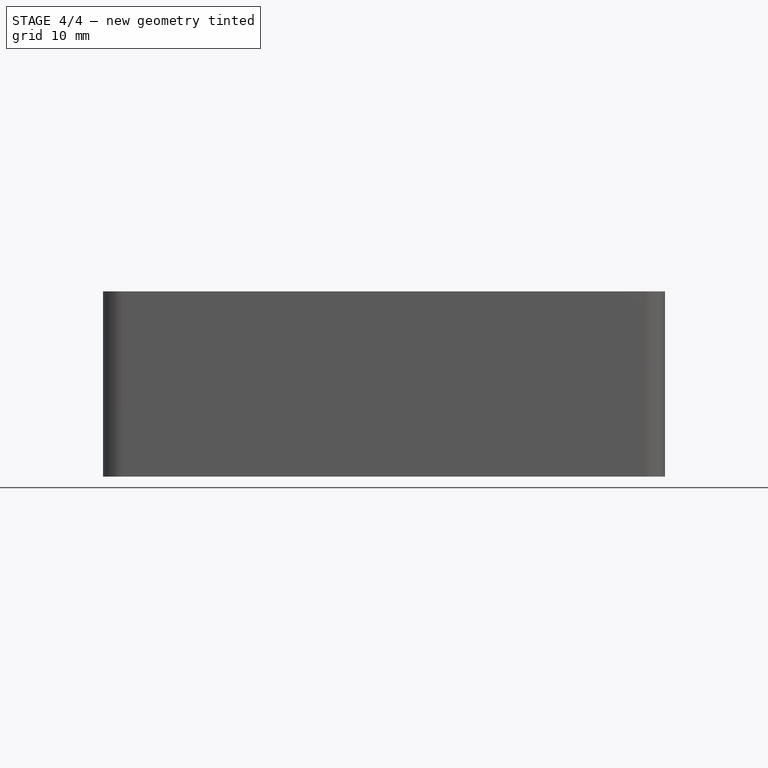
[diagram: stage 4 of 4 — front view after this stage's code; geometry added in this stage tinted green]
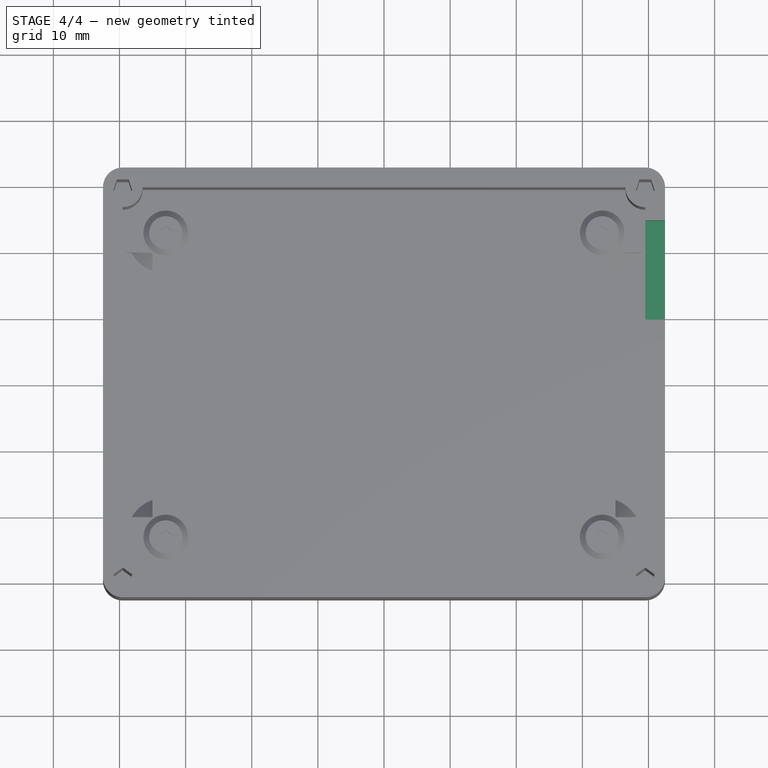
[diagram: stage 4 of 4 — top view after this stage's code; geometry added in this stage tinted green]
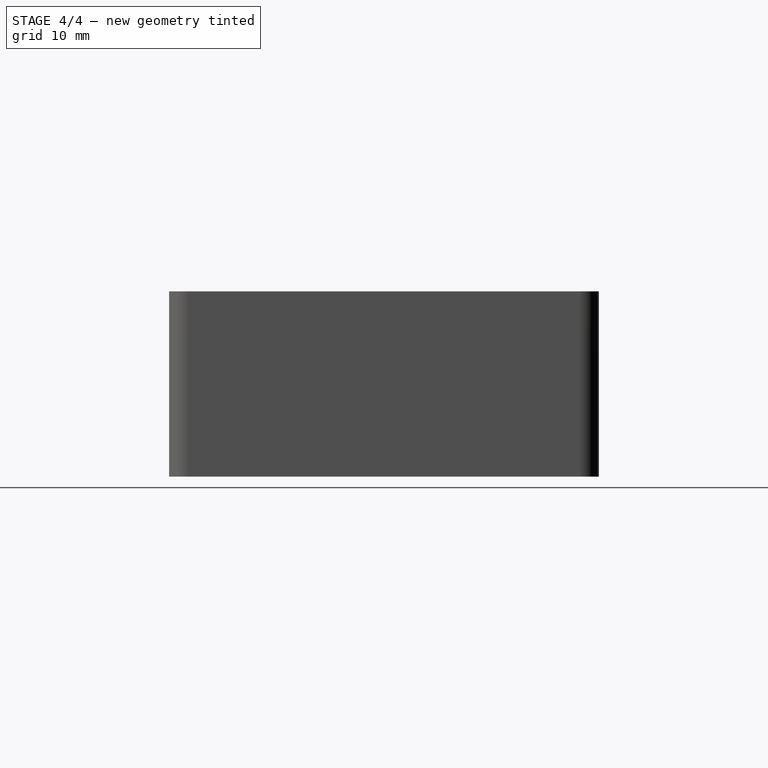
[diagram: stage 4 of 4 — right view after this stage's code; geometry added in this stage tinted green]
FEATURE [Sketcher::SketchObject] Sketch007  label="Case_S_PcbMountingHoles"
  ExternalGeometry = -> [MultiTransform]
  FullyConstrained = true
  MapMode = 5
  Placement = pos=(0,0,4) rot=(0,0,1;0rad)
  Support = -> [DatumPlane002]
  sketch-geometry (24):
    g0: LineSegment StartX=-33.5878 StartY=22.191 StartZ=0 EndX=-32.4122 EndY=22.191 EndZ=0
    g1: LineSegment StartX=-32.4122 StartY=22.191 StartZ=0 EndX=-32.0489 EndY=23.309 EndZ=0
    g2: LineSegment StartX=-32.0489 StartY=23.309 StartZ=0 EndX=-33 EndY=24 EndZ=0
    g3: LineSegment StartX=-33 StartY=24 StartZ=0 EndX=-33.9511 EndY=23.309 EndZ=0
    g4: LineSegment StartX=-33.9511 StartY=23.309 StartZ=0 EndX=-33.5878 EndY=22.191 EndZ=0
    g5: Circle CenterX=-33 CenterY=23 CenterZ=0 NormalX=0 NormalY=0 NormalZ=1 AngleXU=0 Radius=1
    g6: LineSegment StartX=33 StartY=24 StartZ=0 EndX=32.0489 EndY=23.309 EndZ=0
    g7: LineSegment StartX=32.0489 StartY=23.309 StartZ=0 EndX=32.4122 EndY=22.191 EndZ=0
    g8: LineSegment StartX=32.4122 StartY=22.191 StartZ=0 EndX=33.5878 EndY=22.191 EndZ=0
    g9: LineSegment StartX=33.5878 StartY=22.191 StartZ=0 EndX=33.9511 EndY=23.309 EndZ=0
    g10: LineSegment StartX=33.9511 StartY=23.309 StartZ=0 EndX=33 EndY=24 EndZ=0
    g11: Circle CenterX=33 CenterY=23 CenterZ=0 NormalX=0 NormalY=0 NormalZ=1 AngleXU=0 Radius=1
    g12: LineSegment StartX=-33.9511 StartY=-22.691 StartZ=0 EndX=-33.5878 EndY=-23.809 EndZ=0
    g13: LineSegment StartX=-33.5878 StartY=-23.809 StartZ=0 EndX=-32.4122 EndY=-23.809 EndZ=0
    g14: LineSegment StartX=-32.4122 StartY=-23.809 StartZ=0 EndX=-32.0489 EndY=-22.691 EndZ=0
    g15: LineSegment StartX=-32.0489 StartY=-22.691 StartZ=0 EndX=-33 EndY=-22 EndZ=0
    g16: LineSegment StartX=-33 StartY=-22 StartZ=0 EndX=-33.9511 EndY=-22.691 EndZ=0
    g17: Circle CenterX=-33 CenterY=-23 CenterZ=0 NormalX=0 NormalY=0 NormalZ=1 AngleXU=0 Radius=1
    g18: LineSegment StartX=33.9511 StartY=-22.691 StartZ=0 EndX=33 EndY=-22 EndZ=0
    g19: LineSegment StartX=33 StartY=-22 StartZ=0 EndX=32.0489 EndY=-22.691 EndZ=0
    g20: LineSegment StartX=32.0489 StartY=-22.691 StartZ=0 EndX=32.4122 EndY=-23.809 EndZ=0
    g21: LineSegment StartX=32.4122 StartY=-23.809 StartZ=0 EndX=33.5878 EndY=-23.809 EndZ=0
    g22: LineSegment StartX=33.5878 StartY=-23.809 StartZ=0 EndX=33.9511 EndY=-22.691 EndZ=0
    g23: Circle CenterX=33 CenterY=-23 CenterZ=0 NormalX=0 NormalY=0 NormalZ=1 AngleXU=0 Radius=1
  constraints (56):
    c: Coincident(g0,g1)
    c: Coincident(g1,g2)
    c: Coincident(g2,g3)
    c: Coincident(g3,g4)
    c: Coincident(g4,g0)
    c: Equal(g0, g1-g4) x4
    c: PointOnObject(g0,g5)
    c: PointOnObject(g1,g5)
    c: PointOnObject(g2,g5)
    c: PointOnObject(g3,g5)
    c: PointOnObject(g4,g5)
    c: Coincident(g5,g-3)
    c: Coincident(g6,g7)
    c: Coincident(g7,g8)
    c: Coincident(g8,g9)
    c: Coincident(g9,g10)
    c: Coincident(g10,g6)
    c: Equal(g6, g7-g10) x4
    c: PointOnObject(g6,g11)
    c: PointOnObject(g7,g11)
    c: PointOnObject(g8,g11)
    c: PointOnObject(g9,g11)
    c: PointOnObject(g10,g11)
    c: Coincident(g11,g-4)
    c: Coincident(g12,g13)
    c: Coincident(g13,g14)
    c: Coincident(g14,g15)
    c: Coincident(g15,g16)
    c: Coincident(g16,g12)
    c: Equal(g12, g13-g16) x4
    c: PointOnObject(g12,g17)
    c: PointOnObject(g13,g17)
    c: PointOnObject(g14,g17)
    c: PointOnObject(g15,g17)
    c: PointOnObject(g16,g17)
    c: Coincident(g17,g-6)
    c: Coincident(g18,g19)
    c: Coincident(g19,g20)
    c: Coincident(g20,g21)
    c: Coincident(g21,g22)
    c: Coincident(g22,g18)
    c: Equal(g18, g19-g22) x4
    c: PointOnObject(g18,g23)
    c: PointOnObject(g19,g23)
    c: PointOnObject(g20,g23)
    c: PointOnObject(g21,g23)
    c: PointOnObject(g22,g23)
    c: Coincident(g23,g-5)
    c: Diameter(g17) = 2
    c: Equal(g17,g5)
    c: Equal(g5,g11)
    c: Equal(g11,g23)
    c: Horizontal(g0)
    c: Horizontal(g8)
    c: Horizontal(g21)
    c: Horizontal(g13)
FEATURE [PartDesign::Pocket] Pocket002  label="Case_PcbMountingHoles"
  BaseFeature = -> MultiTransform
  Length = 6
  Length2 = 100
  Placement = pos=(0,0,-3) rot=(0,0,1;0rad)
  Profile = -> Sketch007
  Type = 0
FEATURE [Sketcher::SketchObject] Sketch008  label="Case_S_CableCutouts"
  ExternalGeometry = -> [Pocket002,DatumPlane002]
  FullyConstrained = true
  MapMode = 5
  Placement = pos=(42.5,-2.8866e-12,-3) rot=(0.57735,0.57735,0.57735;2.0944rad)
  Support = -> [Pocket002]
  expr: Constraints[30] = <<Case_Trans_PcbStandoffsY>>.Length / 2 - 15mm
  sketch-geometry (11):
    g0: LineSegment StartX=-15.5 StartY=26 StartZ=0 EndX=-0.5 EndY=26 EndZ=0
    g1: LineSegment StartX=-0.5 StartY=26 StartZ=0 EndX=-0.5 EndY=16 EndZ=0
    g2: LineSegment StartX=-0.5 StartY=16 StartZ=0 EndX=-15.5 EndY=16 EndZ=0
    g3: LineSegment StartX=-15.5 StartY=16 StartZ=0 EndX=-15.5 EndY=26 EndZ=0
    g4: LineSegment StartX=9.5 StartY=28 StartZ=0 EndX=24.5 EndY=28 EndZ=0
    g5: LineSegment StartX=24.5 StartY=28 StartZ=0 EndX=24.5 EndY=24 EndZ=0
    g6: LineSegment StartX=24.5 StartY=24 StartZ=0 EndX=9.5 EndY=24 EndZ=0
    g7: LineSegment StartX=9.5 StartY=24 StartZ=0 EndX=9.5 EndY=28 EndZ=0
    g8: LineSegment StartX=-15.5 StartY=16 StartZ=0 EndX=-15.5 EndY=7 EndZ=0
    g9: GeomPoint X=-8 Y=26 Z=0
    g10: LineSegment StartX=-8 StartY=26 StartZ=0 EndX=0 EndY=26 EndZ=0
  constraints (31):
    c: Coincident(g0,g1)
    c: Coincident(g1,g2)
    c: Coincident(g2,g3)
    c: Coincident(g3,g0)
    c: Horizontal(g0)
    c: Horizontal(g2)
    c: Vertical(g1)
    c: Vertical(g3)
    c: DistanceX(g0,g0) = 15
    c: DistanceY(g3,g3) = 10
    c: Coincident(g4,g5)
    c: Coincident(g5,g6)
    c: Coincident(g6,g7)
    c: Coincident(g7,g4)
    c: Horizontal(g4)
    c: Horizontal(g6)
    c: Vertical(g5)
    c: Vertical(g7)
    c: PointOnObject(g4,g-3)
    c: DistanceY(g7,g7) = 4
    c: DistanceX(g6,g6) = 15
    c: DistanceX(g4,g-3) = 5
    c: Coincident(g8,g2)
    c: PointOnObject(g8,g-4)
    c: Vertical(g8)
    c: DistanceY(g8,g8) = 9
    c: Symmetric(g0,g0,g9)
    c: Coincident(g10,g9)
    c: PointOnObject(g10,g-2)
    c: Horizontal(g10)
    c: DistanceX(g10,g10) = 8
FEATURE [PartDesign::Pocket] Pocket003  label="Case_CableCutouts"
  BaseFeature = -> Pocket002
  Length = 5
  Length2 = 100
  Placement = pos=(0,0,-3) rot=(0,0,1;0rad)
  Profile = -> Sketch008
  Type = 2
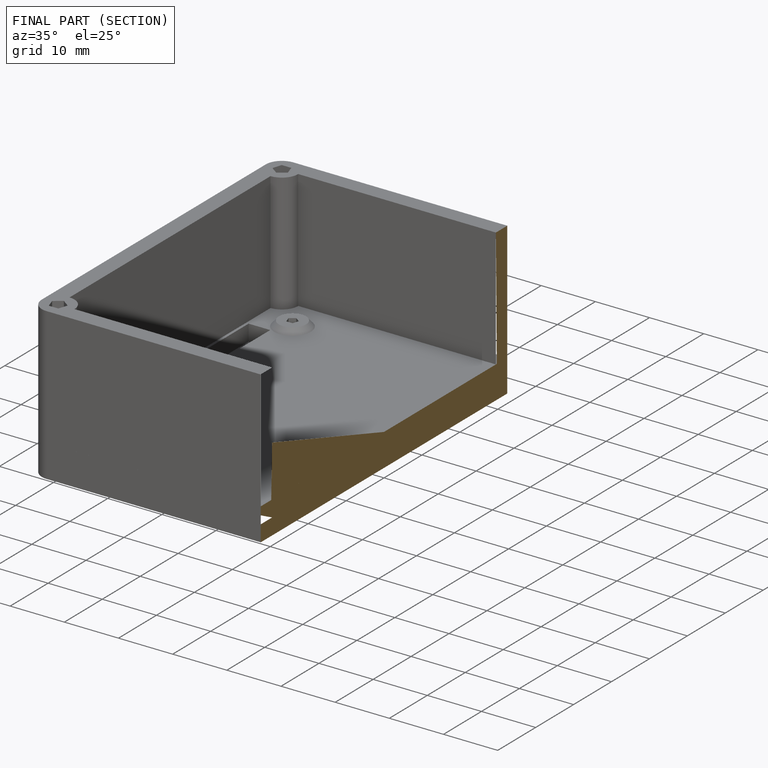
[diagram: finished part — half-section view (interior)]
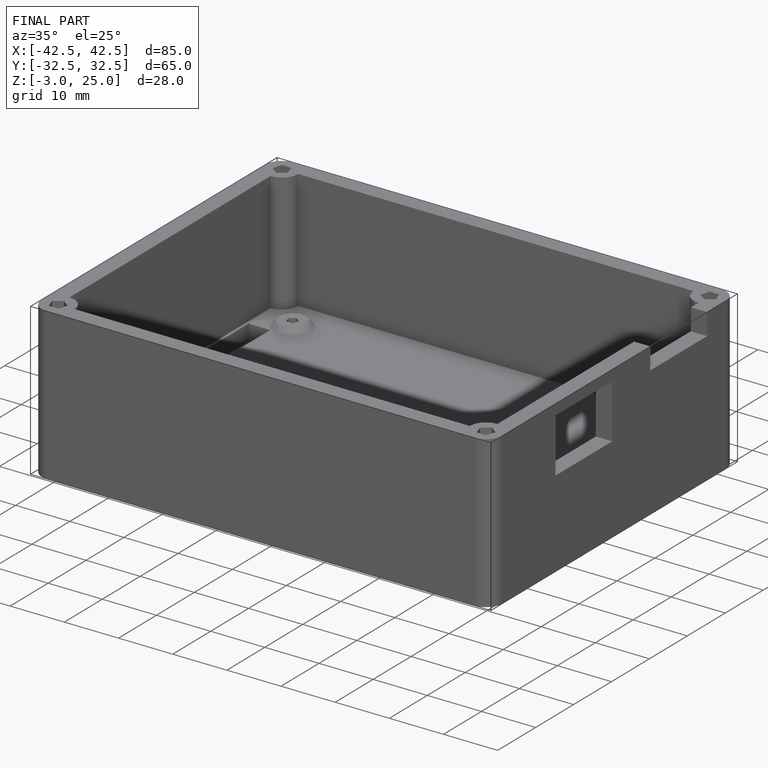
[diagram: finished part — iso view with bounding-box wireframe]
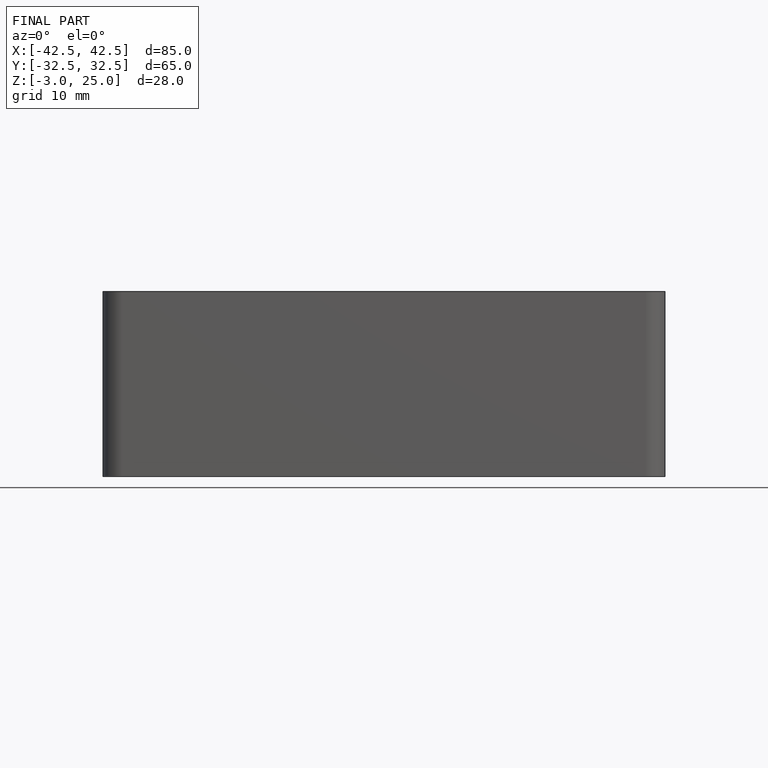
[diagram: finished part — front view with bounding-box wireframe]
